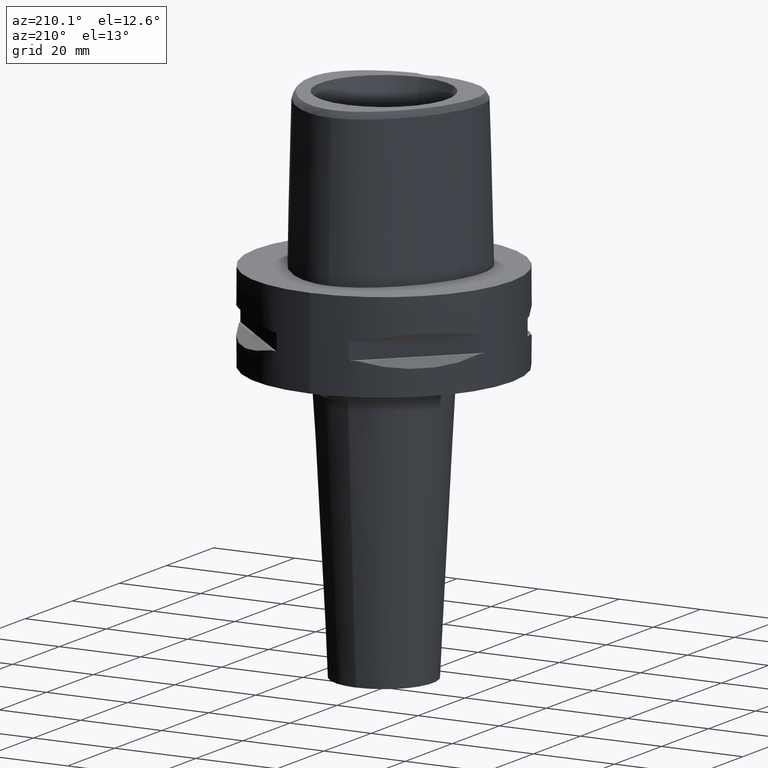
[diagram: clean part render]
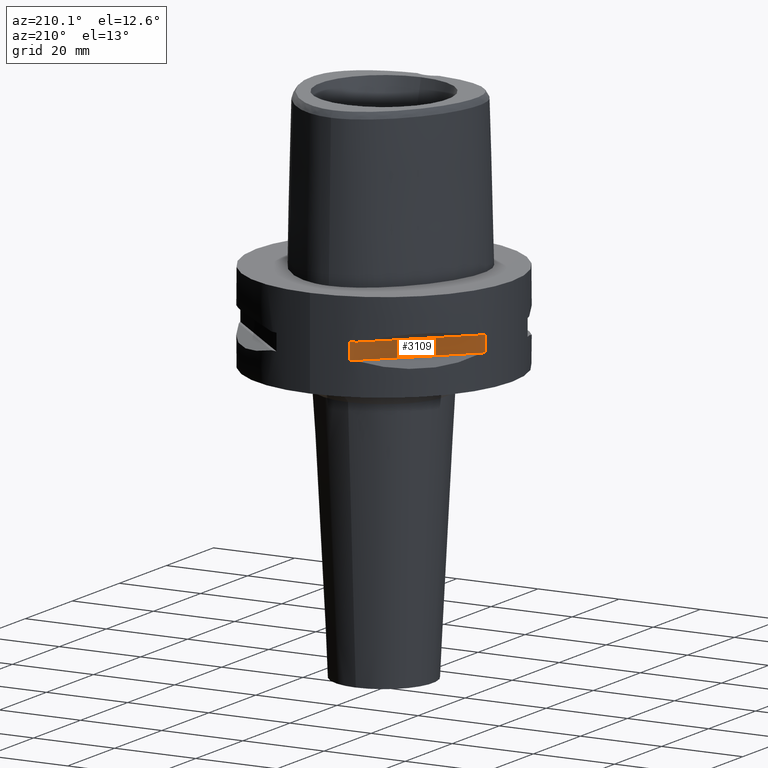
[diagram: same view with one face highlighted and labeled with its STEP entity id]
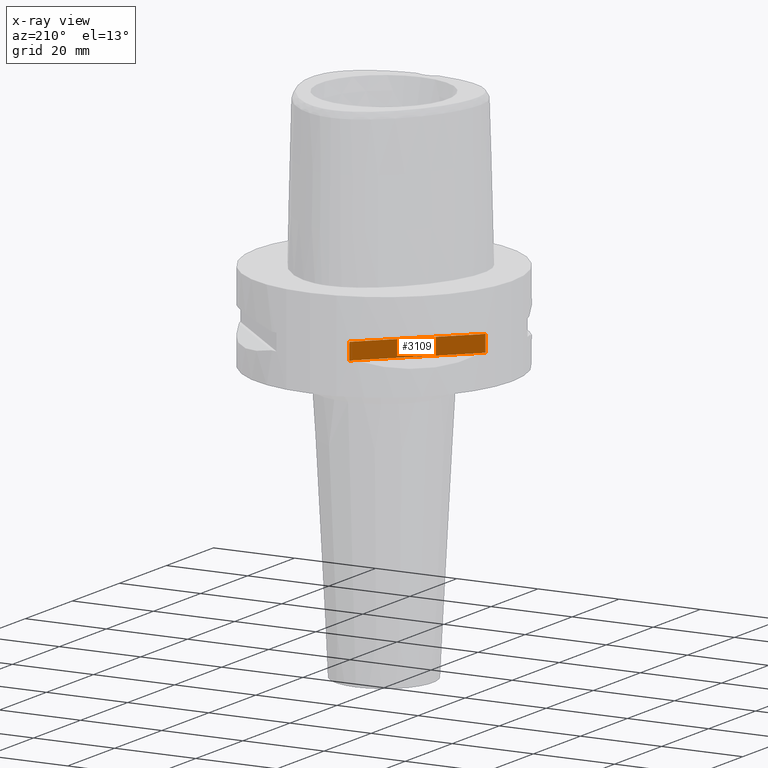
[diagram: x-ray of the same camera — body ghosted, the highlighted face saturated]
A machine part, auxiliary view. The second image highlights one B-rep face of the part: STEP entity #3109.
The next image is the same camera in x-ray: the body ghosted, the highlighted face saturated — about 0% of this face is hidden behind the body in this view.
In plain terms, the highlighted planar face has unit normal (0.7071, -0.7071, 0).
Its self-contained STEP definition (entity closure, byte-faithful):
#401=DIRECTION('',(0.E0,0.E0,-1.E0));
#402=VECTOR('',#401,4.1E0);
#403=CARTESIAN_POINT('',(-8.981198972017E0,3.019251670572E1,-9.95E0));
#404=LINE('',#403,#402);
#419=DIRECTION('',(0.E0,0.E0,1.E0));
#420=VECTOR('',#419,4.1E0);
#421=CARTESIAN_POINT('',(-3.019251670572E1,8.981198972017E0,-1.405E1));
#422=LINE('',#421,#420);
#1306=DIRECTION('',(-7.071067811865E-1,-7.071067811865E-1,0.E0));
#1307=VECTOR('',#1306,2.999733321480E1);
#1308=CARTESIAN_POINT('',(-8.981198972017E0,3.019251670572E1,-9.95E0));
#1309=LINE('',#1308,#1307);
#1329=DIRECTION('',(-7.071067811865E-1,-7.071067811865E-1,0.E0));
#1330=VECTOR('',#1329,2.999733321480E1);
#1331=CARTESIAN_POINT('',(-8.981198972017E0,3.019251670572E1,-1.405E1));
#1332=LINE('',#1331,#1330);
#1450=CARTESIAN_POINT('',(-8.981198972020E0,3.019251670572E1,-9.95E0));
#1451=VERTEX_POINT('',#1450);
#1452=CARTESIAN_POINT('',(-8.981198972017E0,3.019251670572E1,-1.405E1));
#1453=VERTEX_POINT('',#1452);
#1457=CARTESIAN_POINT('',(-3.019251670572E1,8.981198972020E0,-1.405E1));
#1458=VERTEX_POINT('',#1457);
#1459=CARTESIAN_POINT('',(-3.019251670572E1,8.981198972017E0,-9.95E0));
#1460=VERTEX_POINT('',#1459);
#3097=CARTESIAN_POINT('',(-3.726452736853E1,1.909188309204E0,-9.95E0));
#3098=DIRECTION('',(7.071067811865E-1,-7.071067811865E-1,0.E0));
#3099=DIRECTION('',(0.E0,0.E0,-1.E0));
#3100=AXIS2_PLACEMENT_3D('',#3097,#3098,#3099);
#3101=PLANE('',#3100);
#3102=ORIENTED_EDGE('',*,*,#2289,.F.);
#3104=ORIENTED_EDGE('',*,*,#3103,.F.);
#3105=ORIENTED_EDGE('',*,*,#2281,.F.);
#3106=ORIENTED_EDGE('',*,*,#3090,.T.);
#3107=EDGE_LOOP('',(#3102,#3104,#3105,#3106));
#3108=FACE_OUTER_BOUND('',#3107,.F.);
#2281=EDGE_CURVE('',#1451,#1453,#404,.T.);
#2289=EDGE_CURVE('',#1458,#1460,#422,.T.);
#3090=EDGE_CURVE('',#1451,#1460,#1309,.T.);
#3103=EDGE_CURVE('',#1453,#1458,#1332,.T.);
#3109=ADVANCED_FACE('',(#3108),#3101,.F.);